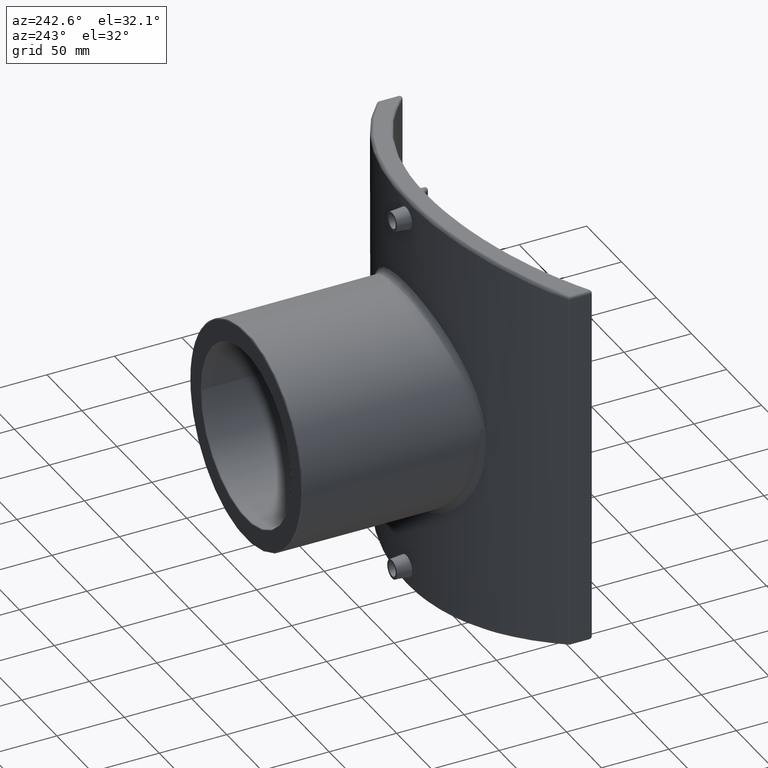
[diagram: clean part render]
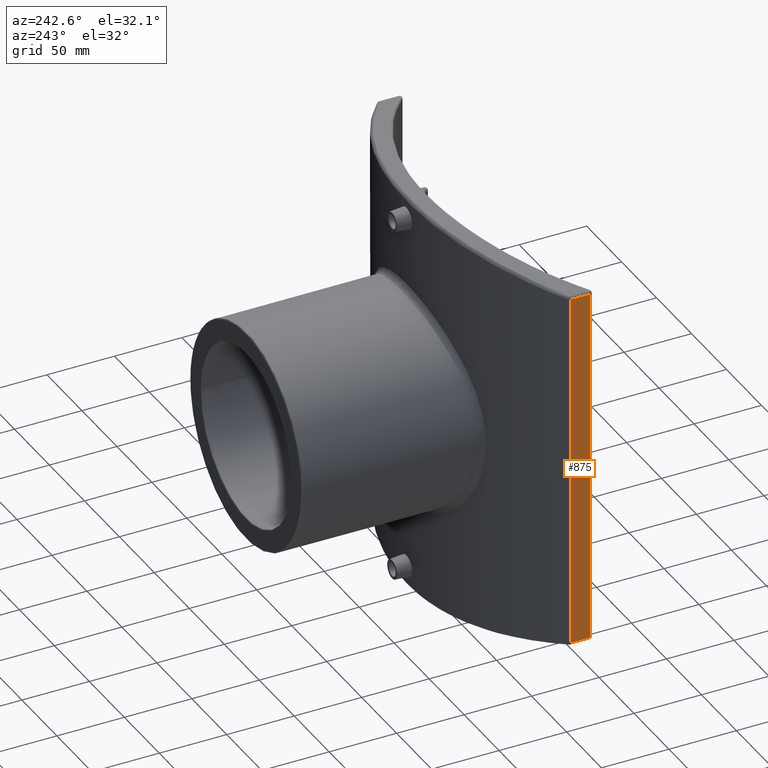
[diagram: same view with one face highlighted and labeled with its STEP entity id]
A machine part, auxiliary view. The second image highlights one B-rep face of the part: STEP entity #875.
In plain terms, the highlighted planar face has unit normal (-1, 0, 0).
Its self-contained STEP definition (entity closure, byte-faithful):
#34=LINE('',#1873,#64);
#45=LINE('',#2099,#75);
#47=LINE('',#2102,#77);
#51=LINE('',#2134,#81);
#64=VECTOR('',#1147,266.784009754194);
#75=VECTOR('',#1228,14.5110746154758);
#77=VECTOR('',#1232,266.784009754194);
#81=VECTOR('',#1250,14.5110746154758);
#152=PLANE('',#1001);
#238=FACE_OUTER_BOUND('',#325,.T.);
#325=EDGE_LOOP('',(#777,#778,#779,#780));
#434=VERTEX_POINT('',#1788);
#440=VERTEX_POINT('',#1863);
#442=VERTEX_POINT('',#1869);
#449=VERTEX_POINT('',#1891);
#521=EDGE_CURVE('',#434,#442,#34,.T.);
#558=EDGE_CURVE('',#442,#449,#45,.T.);
#560=EDGE_CURVE('',#449,#440,#47,.T.);
#569=EDGE_CURVE('',#440,#434,#51,.T.);
#777=ORIENTED_EDGE('',*,*,#521,.F.);
#778=ORIENTED_EDGE('',*,*,#569,.F.);
#779=ORIENTED_EDGE('',*,*,#560,.F.);
#780=ORIENTED_EDGE('',*,*,#558,.F.);
#875=ADVANCED_FACE('',(#238),#152,.T.);
#1001=AXIS2_PLACEMENT_3D('',#2238,#1274,#1275);
#1147=DIRECTION('',(0.,0.,1.));
#1228=DIRECTION('',(0.,-1.,0.));
#1232=DIRECTION('',(0.,0.,-1.));
#1250=DIRECTION('',(0.,1.,0.));
#1274=DIRECTION('center_axis',(-1.,0.,0.));
#1275=DIRECTION('ref_axis',(0.,-1.,0.));
#1788=CARTESIAN_POINT('',(-137.25,164.549194771655,-133.392004877097));
#1863=CARTESIAN_POINT('',(-137.25,150.038120156179,-133.392004877097));
#1869=CARTESIAN_POINT('',(-137.25,164.549194771655,133.392004877097));
#1873=CARTESIAN_POINT('',(-137.25,164.549194771655,0.));
#1891=CARTESIAN_POINT('',(-137.25,150.038120156179,133.392004877097));
#2099=CARTESIAN_POINT('',(-137.25,0.,133.392004877097));
#2102=CARTESIAN_POINT('',(-137.25,150.038120156179,0.));
#2134=CARTESIAN_POINT('',(-137.25,0.,-133.392004877097));
#2238=CARTESIAN_POINT('Origin',(-137.25,165.491502803014,0.));